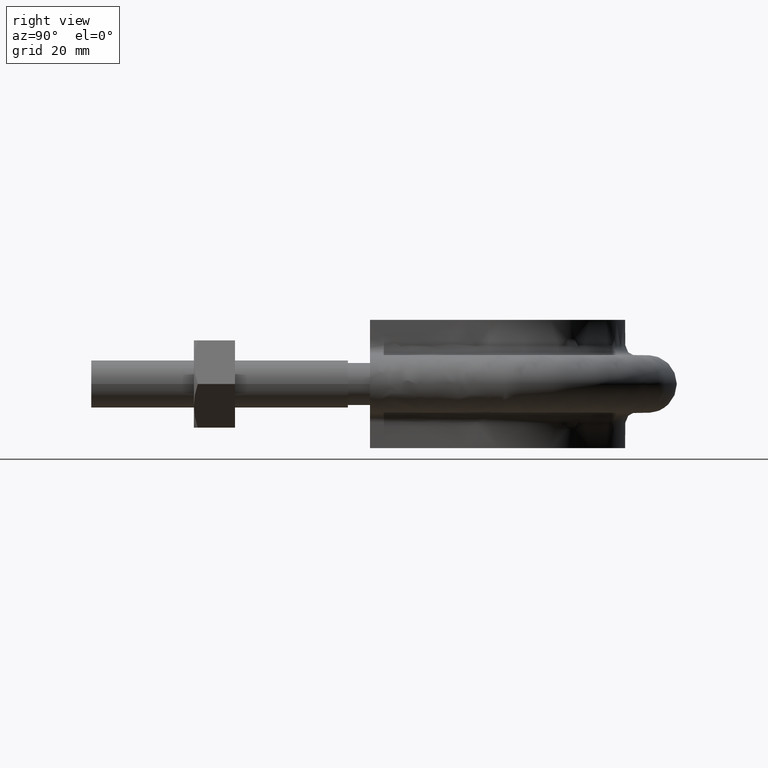
[diagram: clean part render]
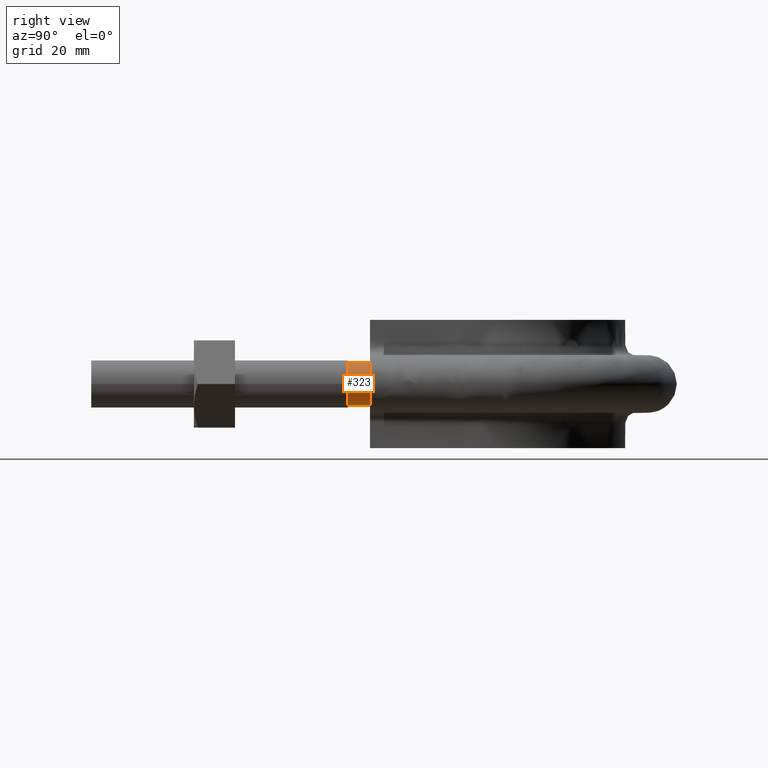
[diagram: same view with one face highlighted and labeled with its STEP entity id]
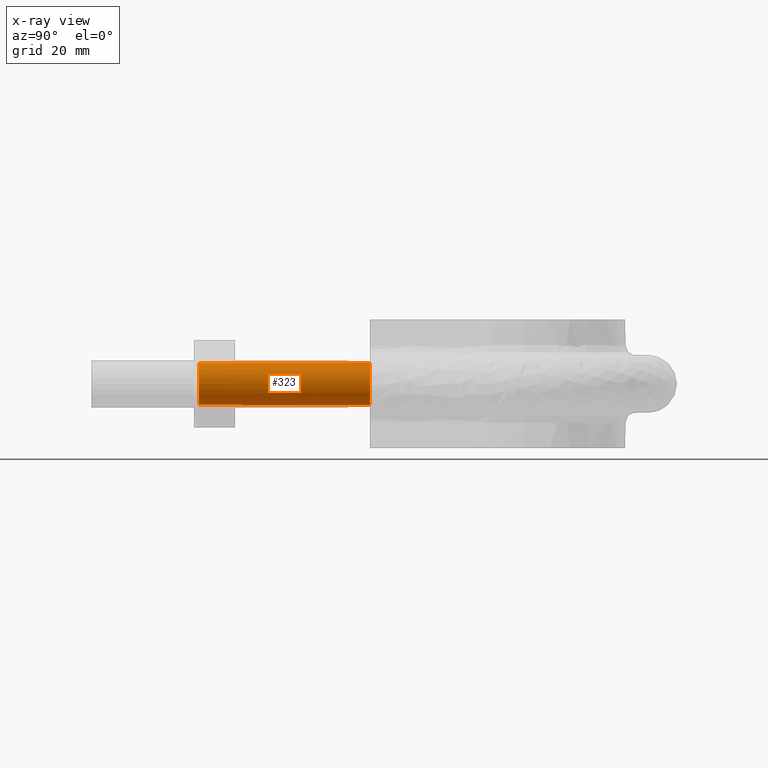
[diagram: x-ray of the same camera — body ghosted, the highlighted face saturated]
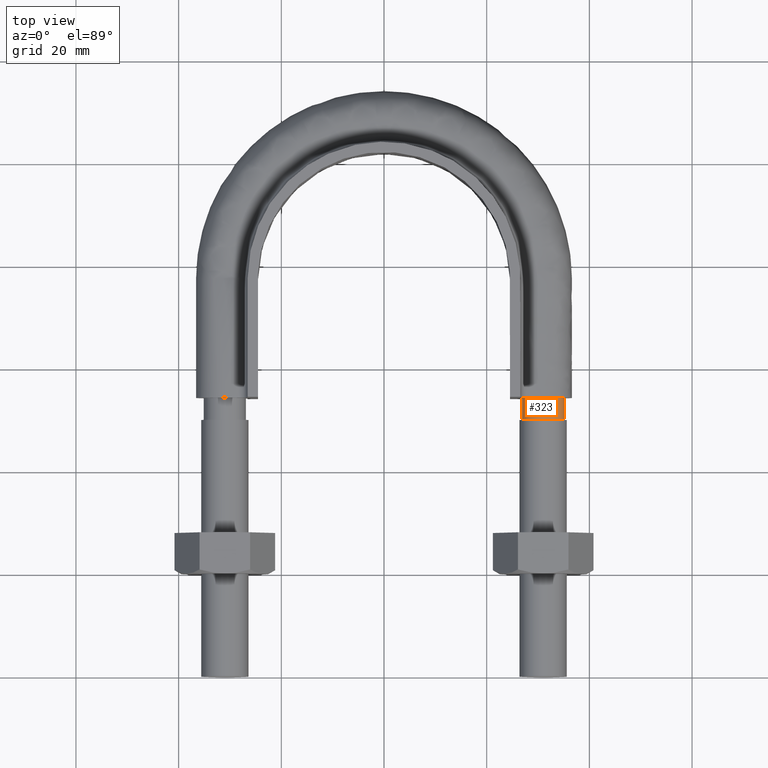
[diagram: same view with one face highlighted and labeled with its STEP entity id]
A machine part, right view. The second image highlights one B-rep face of the part: STEP entity #323.
The next image is the same camera in x-ray: the body ghosted, the highlighted face saturated — about 0% of this face is hidden behind the body in this view.
A second angle (top view) of the same face is appended — the face is thin or edge-on in the first view.
In plain terms, the highlighted cylindrical surface (bore or boss wall) has radius 4.1 mm, axis along (0, 1, 0).
Its self-contained STEP definition (entity closure, byte-faithful):
#323 = ADVANCED_FACE( '', ( #413, #414 ), #415, .T. );
#413 = FACE_OUTER_BOUND( '', #1263, .T. );
#414 = FACE_OUTER_BOUND( '', #1264, .T. );
#415 = CYLINDRICAL_SURFACE( '', #1265, 4.10000000000000 );
#1263 = EDGE_LOOP( '', ( #1630, #1631, #1632, #1633, #1634, #1635, #1636 ) );
#1264 = EDGE_LOOP( '', ( #1637 ) );
#1265 = AXIS2_PLACEMENT_3D( '', #1638, #1639, #1640 );
#1630 = ORIENTED_EDGE( '', *, *, #2127, .T. );
#1631 = ORIENTED_EDGE( '', *, *, #2128, .T. );
#1632 = ORIENTED_EDGE( '', *, *, #2129, .T. );
#1633 = ORIENTED_EDGE( '', *, *, #2125, .T. );
#1634 = ORIENTED_EDGE( '', *, *, #2130, .T. );
#1635 = ORIENTED_EDGE( '', *, *, #2131, .T. );
#1636 = ORIENTED_EDGE( '', *, *, #2132, .T. );
#1637 = ORIENTED_EDGE( '', *, *, #2133, .F. );
#1638 = CARTESIAN_POINT( '', ( 31.0000000000000, 54.3000000000000, 1.03938464280674E-014 ) );
#1639 = DIRECTION( '', ( 2.44921270764475E-016, 1.00000000000000, 3.06151588455594E-016 ) );
#1640 = DIRECTION( '', ( 1.00000000000000, -2.44921270764475E-016, -3.74915180455534E-032 ) );
#2125 = EDGE_CURVE( '', #2287, #2288, #2289, .T. );
#2127 = EDGE_CURVE( '', #2291, #2292, #2293, .T. );
#2128 = EDGE_CURVE( '', #2292, #2294, #2295, .T. );
#2129 = EDGE_CURVE( '', #2294, #2287, #2296, .T. );
#2130 = EDGE_CURVE( '', #2288, #2297, #2298, .T. );
#2131 = EDGE_CURVE( '', #2297, #2299, #2300, .T. );
#2132 = EDGE_CURVE( '', #2299, #2291, #2301, .T. );
#2133 = EDGE_CURVE( '', #2302, #2302, #2303, .T. );
#2287 = VERTEX_POINT( '', #2735 );
#2288 = VERTEX_POINT( '', #2736 );
#2289 = CIRCLE( '', #2737, 4.10000000000000 );
#2291 = VERTEX_POINT( '', #2742 );
#2292 = VERTEX_POINT( '', #2743 );
#2293 = CIRCLE( '', #2744, 4.10000000000000 );
#2294 = VERTEX_POINT( '', #2745 );
#2295 = CIRCLE( '', #2746, 4.10000000000000 );
#2296 = CIRCLE( '', #2747, 4.10000000000000 );
#2297 = VERTEX_POINT( '', #2748 );
#2298 = CIRCLE( '', #2749, 4.10000000000000 );
#2299 = VERTEX_POINT( '', #2750 );
#2300 = CIRCLE( '', #2751, 4.10000000000000 );
#2301 = CIRCLE( '', #2752, 4.10000000000000 );
#2302 = VERTEX_POINT( '', #2753 );
#2303 = CIRCLE( '', #2754, 4.10000000000000 );
#2735 = CARTESIAN_POINT( '', ( 26.9000000000000, 54.3000000000000, -2.58256698510804E-013 ) );
#2736 = CARTESIAN_POINT( '', ( 28.4436918123816, 54.3000000000000, -3.20550907812088 ) );
#2737 = AXIS2_PLACEMENT_3D( '', #3181, #3182, #3183 );
#2742 = CARTESIAN_POINT( '', ( 34.6939723584000, 54.3000000000000, 1.77892333038190 ) );
#2743 = CARTESIAN_POINT( '', ( 31.9123358292210, 54.3000000000000, 3.99720443994545 ) );
#2744 = AXIS2_PLACEMENT_3D( '', #3184, #3185, #3186 );
#2745 = CARTESIAN_POINT( '', ( 28.4436918123792, 54.3000000000000, 3.20550907811889 ) );
#2746 = AXIS2_PLACEMENT_3D( '', #3187, #3188, #3189 );
#2747 = AXIS2_PLACEMENT_3D( '', #3190, #3191, #3192 );
#2748 = CARTESIAN_POINT( '', ( 31.9123358292214, 54.3000000000000, -3.99720443994537 ) );
#2749 = AXIS2_PLACEMENT_3D( '', #3193, #3194, #3195 );
#2750 = CARTESIAN_POINT( '', ( 34.6939723583999, 54.3000000000000, -1.77892333038200 ) );
#2751 = AXIS2_PLACEMENT_3D( '', #3196, #3197, #3198 );
#2752 = AXIS2_PLACEMENT_3D( '', #3199, #3200, #3201 );
#2753 = CARTESIAN_POINT( '', ( 35.1000000000000, 21.0000000000000, 1.98998532496135E-016 ) );
#2754 = AXIS2_PLACEMENT_3D( '', #3202, #3203, #3204 );
#3181 = CARTESIAN_POINT( '', ( 31.0000000000000, 54.3000000000000, 1.03938464280674E-014 ) );
#3182 = DIRECTION( '', ( -2.44921270764475E-016, -1.00000000000000, -3.06151588455594E-016 ) );
#3183 = DIRECTION( '', ( 1.00000000000000, -2.44921270764475E-016, -3.16197804102265E-032 ) );
#3184 = CARTESIAN_POINT( '', ( 31.0000000000000, 54.3000000000000, 1.03938464280674E-014 ) );
#3185 = DIRECTION( '', ( -2.44921270764475E-016, -1.00000000000000, -3.06151588455594E-016 ) );
#3186 = DIRECTION( '', ( 1.00000000000000, -2.44921270764475E-016, -3.16197804102265E-032 ) );
#3187 = CARTESIAN_POINT( '', ( 31.0000000000000, 54.3000000000000, 1.03938464280674E-014 ) );
#3188 = DIRECTION( '', ( -2.44921270764475E-016, -1.00000000000000, -3.06151588455594E-016 ) );
#3189 = DIRECTION( '', ( 1.00000000000000, -2.44921270764475E-016, -3.16197804102265E-032 ) );
#3190 = CARTESIAN_POINT( '', ( 31.0000000000000, 54.3000000000000, 1.03938464280674E-014 ) );
#3191 = DIRECTION( '', ( -2.44921270764475E-016, -1.00000000000000, -3.06151588455594E-016 ) );
#3192 = DIRECTION( '', ( 1.00000000000000, -2.44921270764475E-016, -3.16197804102265E-032 ) );
#3193 = CARTESIAN_POINT( '', ( 31.0000000000000, 54.3000000000000, 1.03938464280674E-014 ) );
#3194 = DIRECTION( '', ( -2.44921270764475E-016, -1.00000000000000, -3.06151588455594E-016 ) );
#3195 = DIRECTION( '', ( 1.00000000000000, -2.44921270764475E-016, -3.16197804102265E-032 ) );
#3196 = CARTESIAN_POINT( '', ( 31.0000000000000, 54.3000000000000, 1.03938464280674E-014 ) );
#3197 = DIRECTION( '', ( -2.44921270764475E-016, -1.00000000000000, -3.06151588455594E-016 ) );
#3198 = DIRECTION( '', ( 1.00000000000000, -2.44921270764475E-016, -3.16197804102265E-032 ) );
#3199 = CARTESIAN_POINT( '', ( 31.0000000000000, 54.3000000000000, 1.03938464280674E-014 ) );
#3200 = DIRECTION( '', ( -2.44921270764475E-016, -1.00000000000000, -3.06151588455594E-016 ) );
#3201 = DIRECTION( '', ( 1.00000000000000, -2.44921270764475E-016, -3.16197804102265E-032 ) );
#3202 = CARTESIAN_POINT( '', ( 31.0000000000000, 21.0000000000000, 1.98998532496135E-016 ) );
#3203 = DIRECTION( '', ( -2.44921270764475E-016, -1.00000000000000, -3.06151588455594E-016 ) );
#3204 = DIRECTION( '', ( 1.00000000000000, -2.44921270764475E-016, -3.16197804102265E-032 ) );